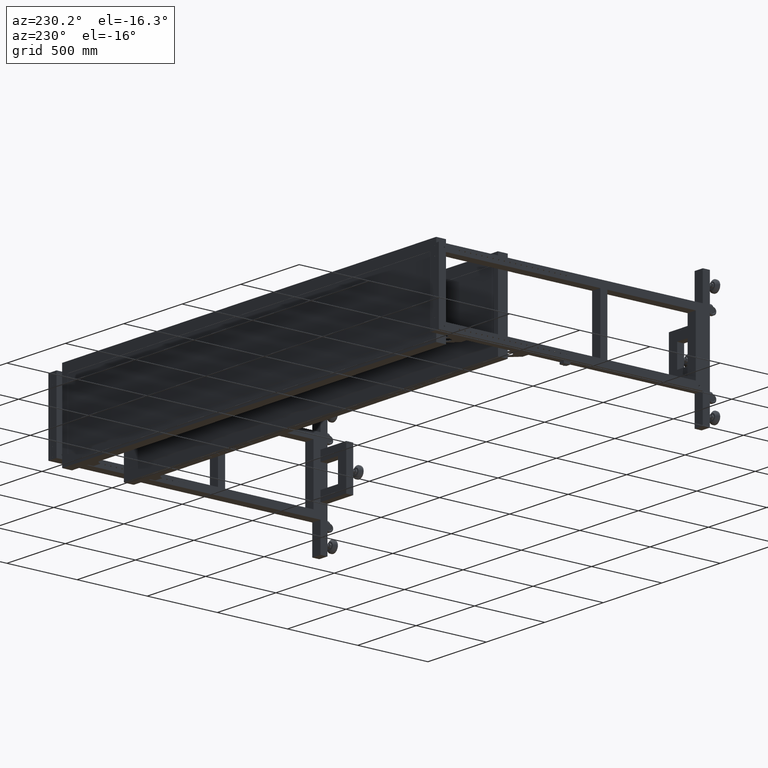
[diagram: clean part render]
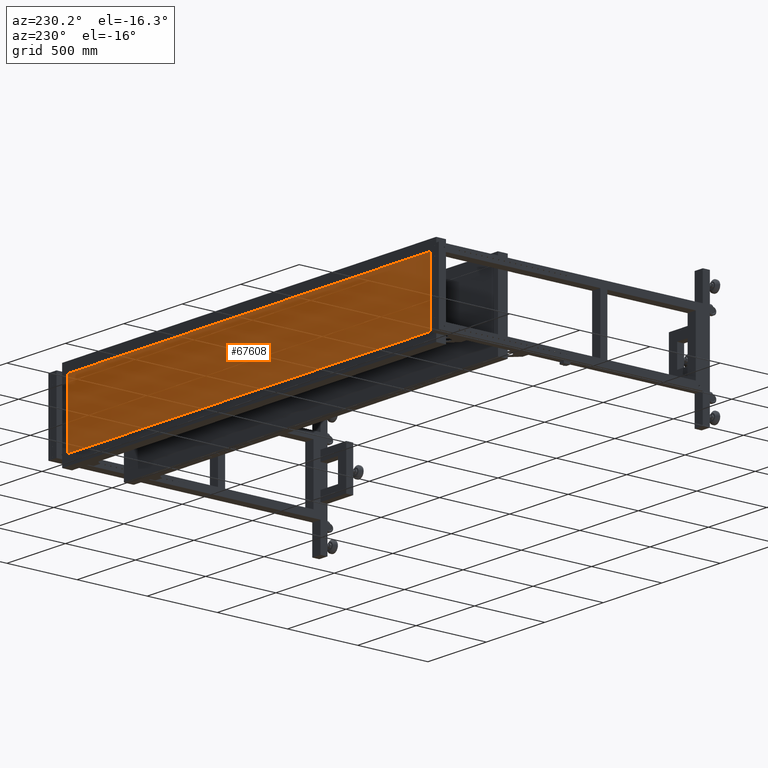
[diagram: same view with one face highlighted and labeled with its STEP entity id]
A machine part, auxiliary view. The second image highlights one B-rep face of the part: STEP entity #67608.
In plain terms, the highlighted planar face has unit normal (-0, 1, 0).
Its self-contained STEP definition (entity closure, byte-faithful):
#573 = DIRECTION ( 'NONE',  ( 4.543257172554225407E-31, -1.000000000000000472E-15, 1.000000000000000000 ) ) ;
#1295 = VECTOR ( 'NONE', #77871, 1000.000000000000000 ) ;
#3509 = LINE ( 'NONE', #70672, #30571 ) ;
#4693 = DIRECTION ( 'NONE',  ( 4.543257172554225407E-31, -1.000000000000000472E-15, 1.000000000000000000 ) ) ;
#5546 = CARTESIAN_POINT ( 'NONE',  ( 1880.317512562814727, 996.9410804020142223, -228.4899999999988438 ) ) ;
#13066 = EDGE_CURVE ( 'NONE', #44170, #76599, #61509, .T. ) ;
#15588 = ORIENTED_EDGE ( 'NONE', *, *, #13066, .F. ) ;
#20268 = FACE_OUTER_BOUND ( 'NONE', #29321, .T. ) ;
#21733 = DIRECTION ( 'NONE',  ( 1.000000000000000000, 4.543257172554223644E-16, 0.000000000000000000 ) ) ;
#28904 = VECTOR ( 'NONE', #42225, 1000.000000000000000 ) ;
#29321 = EDGE_LOOP ( 'NONE', ( #34421, #39044, #15588, #33049 ) ) ;
#29947 = CARTESIAN_POINT ( 'NONE',  ( -1216.662487437185973, 996.9410804020130854, -228.4899999999988438 ) ) ;
#30571 = VECTOR ( 'NONE', #4693, 1000.000000000000000 ) ;
#31116 = CARTESIAN_POINT ( 'NONE',  ( 681.8275125628146043, 996.9410804020134265, 1.167234175856414311E-12 ) ) ;
#33049 = ORIENTED_EDGE ( 'NONE', *, *, #49031, .F. ) ;
#34421 = ORIENTED_EDGE ( 'NONE', *, *, #54239, .F. ) ;
#36555 = CARTESIAN_POINT ( 'NONE',  ( 1880.317512562814727, 996.9410804020137675, 228.4900000000011744 ) ) ;
#39044 = ORIENTED_EDGE ( 'NONE', *, *, #73332, .T. ) ;
#42225 = DIRECTION ( 'NONE',  ( -1.000000000000000000, -4.543257172554223644E-16, 0.000000000000000000 ) ) ;
#43057 = AXIS2_PLACEMENT_3D ( 'NONE', #31116, #55673, #573 ) ;
#44170 = VERTEX_POINT ( 'NONE', #64008 ) ;
#47684 = LINE ( 'NONE', #29947, #1295 ) ;
#49031 = EDGE_CURVE ( 'NONE', #62983, #44170, #3509, .T. ) ;
#51885 = CARTESIAN_POINT ( 'NONE',  ( -516.6624874371854048, 996.9410804020130854, -228.4899999999988438 ) ) ;
#54239 = EDGE_CURVE ( 'NONE', #77349, #62983, #69612, .T. ) ;
#55673 = DIRECTION ( 'NONE',  ( -4.543257172554223644E-16, 1.000000000000000000, 1.000000000000000472E-15 ) ) ;
#61509 = LINE ( 'NONE', #36555, #28904 ) ;
#62983 = VERTEX_POINT ( 'NONE', #5546 ) ;
#64008 = CARTESIAN_POINT ( 'NONE',  ( 1880.317512562814727, 996.9410804020137675, 228.4900000000011744 ) ) ;
#64637 = VECTOR ( 'NONE', #21733, 1000.000000000000000 ) ;
#65949 = CARTESIAN_POINT ( 'NONE',  ( -1216.662487437185973, 996.9410804020126307, 228.4900000000011744 ) ) ;
#67608 = ADVANCED_FACE ( 'NONE', ( #20268 ), #68160, .T. ) ;
#68160 = PLANE ( 'NONE',  #43057 ) ;
#69612 = LINE ( 'NONE', #51885, #64637 ) ;
#70672 = CARTESIAN_POINT ( 'NONE',  ( 1880.317512562814727, 996.9410804020142223, -228.4899999999988438 ) ) ;
#72487 = CARTESIAN_POINT ( 'NONE',  ( -1216.662487437185973, 996.9410804020130854, -228.4899999999988438 ) ) ;
#73332 = EDGE_CURVE ( 'NONE', #77349, #76599, #47684, .T. ) ;
#76599 = VERTEX_POINT ( 'NONE', #65949 ) ;
#77349 = VERTEX_POINT ( 'NONE', #72487 ) ;
#77871 = DIRECTION ( 'NONE',  ( 0.000000000000000000, -1.000000000000000472E-15, 1.000000000000000000 ) ) ;